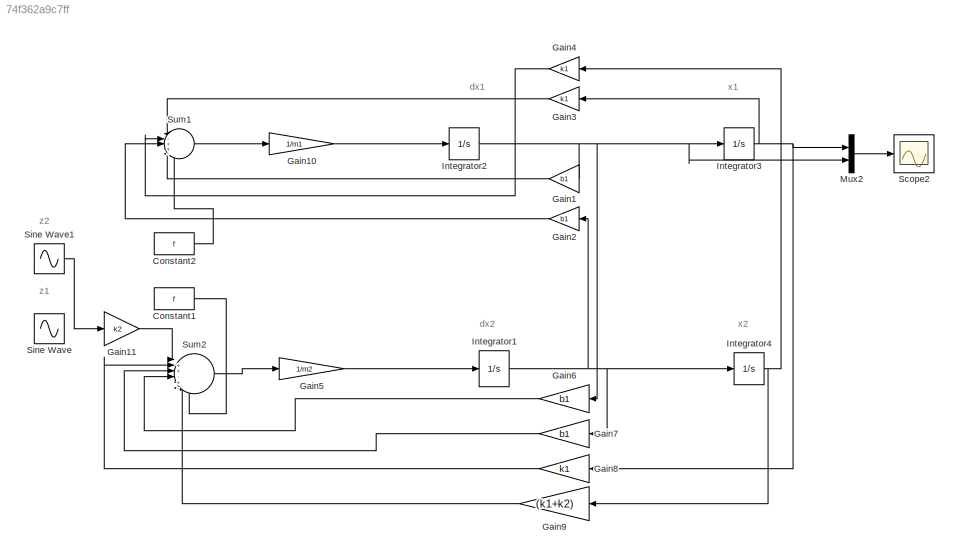
MODEL slx_74f362a9c7ff
KIND model
CONFIG AbsTol = auto
CONFIG EnableMultiTasking = off
CONFIG FixedStep = auto
CONFIG InitFcn = m1=290;\nb1=1000;\nm2=59;\nk1=16182;\nf=0;\nt=15;\nk2=19000;\n
CONFIG MaxStep = auto
CONFIG MinStep = auto
CONFIG RelTol = 1e-3
CONFIG SampleTimeConstraint = Unconstrained
CONFIG SolverName = VariableStepAuto
CONFIG StartTime = 0.0
CONFIG StopTime = 15
BLOCK [Constant] Constant1
  Value = f
BLOCK [Constant] Constant2
  Value = f
BLOCK [Gain] Gain1
  Gain = b1
  NameLocation = top
BLOCK [Gain] Gain10
  Gain = 1/m1
BLOCK [Gain] Gain11
  Gain = k2
BLOCK [Gain] Gain2
  Gain = b1
  NameLocation = top
BLOCK [Gain] Gain3
  Gain = k1
  NameLocation = top
BLOCK [Gain] Gain4
  Gain = k1
  NameLocation = top
BLOCK [Gain] Gain5
  Gain = 1/m2
BLOCK [Gain] Gain6
  Gain = b1
  NameLocation = top
BLOCK [Gain] Gain7
  Gain = b1
  NameLocation = top
BLOCK [Gain] Gain8
  Gain = k1
  NameLocation = top
BLOCK [Gain] Gain9
  Gain = (k1+k2)
  NameLocation = top
BLOCK [Integrator] Integrator1
BLOCK [Integrator] Integrator2
BLOCK [Integrator] Integrator3
BLOCK [Integrator] Integrator4
BLOCK [Mux] Mux2
  DisplayOption = bar
  Inputs = 2
BLOCK [Scope] Scope2
  Floating = off
  NumInputPorts = 1
  ScopeSpecificationString = Simulink.scopes.TimeScopeBlockCfg('CurrentConfiguration', extmgr.ConfigurationSet(extmgr.Configuration('Core','General UI',true),extmgr.Configuration('Core','Source UI',true),extmgr.Configuration('Sources','WiredSimulink',true),extmgr.Configuration('Visuals','Time Domain',true,'SerializedDisplays',{struct('MinYLimReal','-0.04838','MaxYLimReal','0.06592','YLabelReal','','MinYLimMag','0.00000','MaxY...<+1462ch>
BLOCK [Sin] Sine Wave
  Amplitude = 0.05
  Frequency = 0.5 * pi
  SampleTime = 0
BLOCK [Sin] Sine Wave1
  Amplitude = 0.05
  Frequency = 20 * pi
  SampleTime = 0
BLOCK [Sum] Sum1
  Inputs = |-++-+
BLOCK [Sum] Sum2
  Inputs = |++-+--
ANNOTATION (root): dx1
ANNOTATION (root): dx2
ANNOTATION (root): x1
ANNOTATION (root): x2
ANNOTATION (root): z1
ANNOTATION (root): z2
LINE Constant1:1 -> Sum2:6
LINE Constant2:1 -> Sum1:5
LINE Gain10:1 -> Integrator2:1
LINE Gain11:1 -> Sum2:1
LINE Gain1:1 -> Sum1:4
LINE Gain2:1 -> Sum1:3
LINE Gain3:1 -> Sum1:1
LINE Gain4:1 -> Sum1:2
LINE Gain5:1 -> Integrator1:1
LINE Gain6:1 -> Sum2:4
LINE Gain7:1 -> Sum2:3
LINE Gain8:1 -> Sum2:2
LINE Gain9:1 -> Sum2:5
NET Integrator1:1 -> Gain2:1, Gain7:1, Integrator4:1
NET Integrator2:1 -> Gain1:1, Gain6:1, Integrator3:1, Mux2:2
NET Integrator3:1 -> Gain3:1, Gain8:1, Mux2:1
NET Integrator4:1 -> Gain4:1, Gain9:1
LINE Mux2:1 -> Scope2:1
LINE Sine Wave1:1 -> Gain11:1
LINE Sum1:1 -> Gain10:1
LINE Sum2:1 -> Gain5:1
note: NET lines group one-source signal fan-out (src -> all destinations, sorted); 1:1 wires keep LINE
